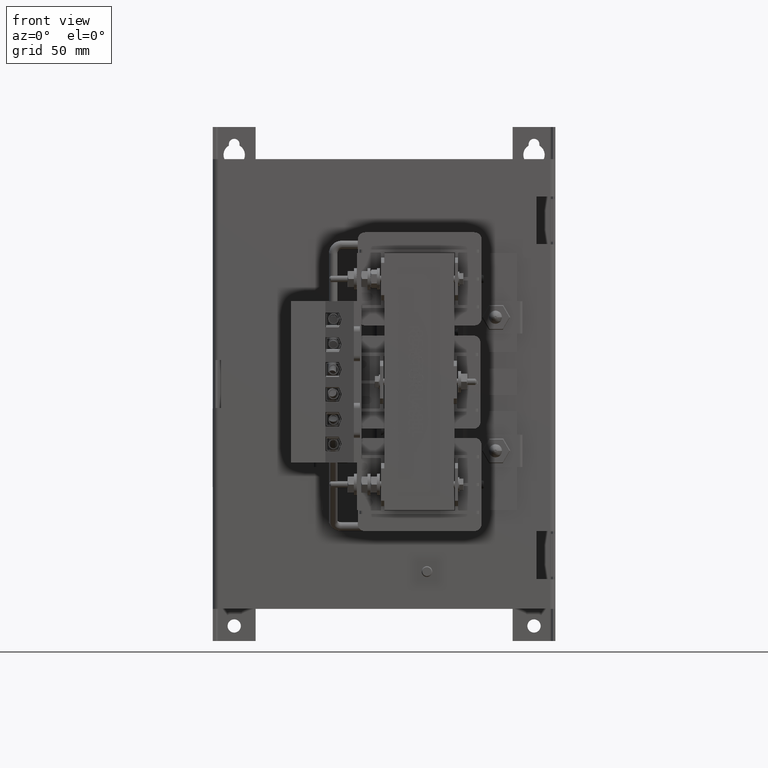
[diagram: clean part render]
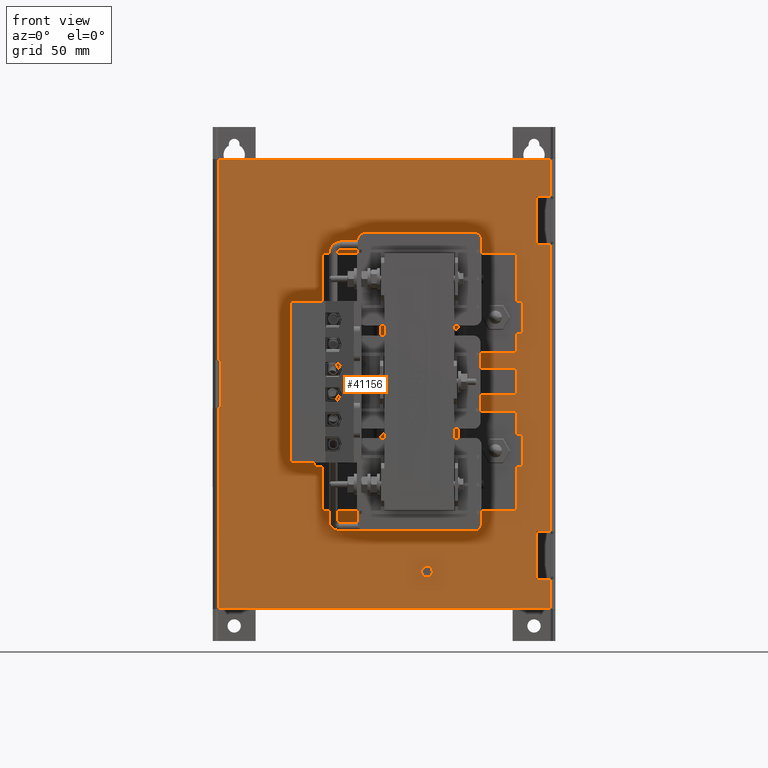
[diagram: same view with one face highlighted and labeled with its STEP entity id]
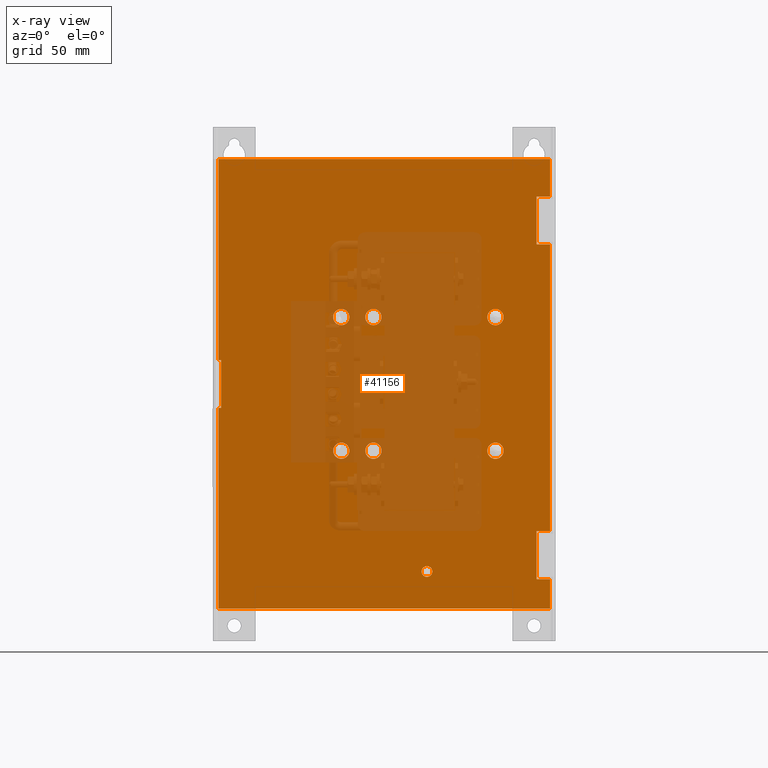
[diagram: x-ray of the same camera — body ghosted, the highlighted face saturated]
A machine part, front view. The second image highlights one B-rep face of the part: STEP entity #41156.
The next image is the same camera in x-ray: the body ghosted, the highlighted face saturated — about 32% of this face is hidden behind the body in this view.
In plain terms, the highlighted planar face has unit normal (-0, 1, 0).
Its self-contained STEP definition (entity closure, byte-faithful):
#1494=FACE_BOUND('',#6390,.T.);
#1495=FACE_BOUND('',#6391,.T.);
#1496=FACE_BOUND('',#6392,.T.);
#1497=FACE_BOUND('',#6393,.T.);
#1498=FACE_BOUND('',#6394,.T.);
#1499=FACE_BOUND('',#6395,.T.);
#1500=FACE_BOUND('',#6396,.T.);
#1930=PLANE('',#44309);
#4074=FACE_OUTER_BOUND('',#6389,.T.);
#6389=EDGE_LOOP('',(#28836,#28837,#28838,#28839,#28840,#28841,#28842,#28843,
#28844,#28845,#28846,#28847,#28848,#28849,#28850,#28851));
#6390=EDGE_LOOP('',(#28852));
#6391=EDGE_LOOP('',(#28853));
#6392=EDGE_LOOP('',(#28854));
#6393=EDGE_LOOP('',(#28855));
#6394=EDGE_LOOP('',(#28856));
#6395=EDGE_LOOP('',(#28857));
#6396=EDGE_LOOP('',(#28858));
#9147=LINE('',#59542,#13192);
#9151=LINE('',#59550,#13196);
#9154=LINE('',#59558,#13199);
#9172=LINE('',#59599,#13217);
#9173=LINE('',#59601,#13218);
#9174=LINE('',#59603,#13219);
#9175=LINE('',#59605,#13220);
#9176=LINE('',#59607,#13221);
#9177=LINE('',#59609,#13222);
#9178=LINE('',#59611,#13223);
#9179=LINE('',#59613,#13224);
#9180=LINE('',#59615,#13225);
#9181=LINE('',#59617,#13226);
#9182=LINE('',#59619,#13227);
#9183=LINE('',#59621,#13228);
#9184=LINE('',#59622,#13229);
#13192=VECTOR('',#48281,0.393700787401575);
#13196=VECTOR('',#48287,0.393700787401575);
#13199=VECTOR('',#48294,0.393700787401575);
#13217=VECTOR('',#48326,0.393700787401575);
#13218=VECTOR('',#48327,0.0914400000000001);
#13219=VECTOR('',#48328,0.393700787401575);
#13220=VECTOR('',#48329,0.393700787401575);
#13221=VECTOR('',#48330,0.393700787401575);
#13222=VECTOR('',#48331,0.393700787401575);
#13223=VECTOR('',#48332,0.393700787401575);
#13224=VECTOR('',#48333,0.393700787401575);
#13225=VECTOR('',#48334,0.393700787401575);
#13226=VECTOR('',#48335,0.393700787401575);
#13227=VECTOR('',#48336,0.393700787401575);
#13228=VECTOR('',#48337,0.0914400000000001);
#13229=VECTOR('',#48338,0.393700787401575);
#17077=CIRCLE('',#44106,0.125);
#17090=CIRCLE('',#44133,0.19);
#17092=CIRCLE('',#44136,0.19);
#17094=CIRCLE('',#44139,0.19);
#17096=CIRCLE('',#44142,0.19);
#17098=CIRCLE('',#44145,0.19);
#17100=CIRCLE('',#44148,0.19);
#18360=VERTEX_POINT('',#59011);
#18373=VERTEX_POINT('',#59060);
#18375=VERTEX_POINT('',#59066);
#18377=VERTEX_POINT('',#59072);
#18379=VERTEX_POINT('',#59078);
#18381=VERTEX_POINT('',#59084);
#18383=VERTEX_POINT('',#59090);
#18534=VERTEX_POINT('',#59539);
#18535=VERTEX_POINT('',#59541);
#18538=VERTEX_POINT('',#59549);
#18541=VERTEX_POINT('',#59557);
#18557=VERTEX_POINT('',#59598);
#18558=VERTEX_POINT('',#59600);
#18559=VERTEX_POINT('',#59602);
#18560=VERTEX_POINT('',#59604);
#18561=VERTEX_POINT('',#59606);
#18562=VERTEX_POINT('',#59608);
#18563=VERTEX_POINT('',#59610);
#18564=VERTEX_POINT('',#59612);
#18565=VERTEX_POINT('',#59614);
#18566=VERTEX_POINT('',#59616);
#18567=VERTEX_POINT('',#59618);
#18568=VERTEX_POINT('',#59620);
#22336=EDGE_CURVE('',#18360,#18360,#17077,.T.);
#22357=EDGE_CURVE('',#18373,#18373,#17090,.T.);
#22360=EDGE_CURVE('',#18375,#18375,#17092,.T.);
#22363=EDGE_CURVE('',#18377,#18377,#17094,.T.);
#22366=EDGE_CURVE('',#18379,#18379,#17096,.T.);
#22369=EDGE_CURVE('',#18381,#18381,#17098,.T.);
#22372=EDGE_CURVE('',#18383,#18383,#17100,.T.);
#22597=EDGE_CURVE('',#18535,#18534,#9147,.T.);
#22601=EDGE_CURVE('',#18538,#18535,#9151,.T.);
#22605=EDGE_CURVE('',#18541,#18538,#9154,.T.);
#22626=EDGE_CURVE('',#18534,#18557,#9172,.T.);
#22627=EDGE_CURVE('',#18557,#18558,#9173,.T.);
#22628=EDGE_CURVE('',#18558,#18559,#9174,.T.);
#22629=EDGE_CURVE('',#18559,#18560,#9175,.T.);
#22630=EDGE_CURVE('',#18560,#18561,#9176,.T.);
#22631=EDGE_CURVE('',#18561,#18562,#9177,.T.);
#22632=EDGE_CURVE('',#18562,#18563,#9178,.T.);
#22633=EDGE_CURVE('',#18563,#18564,#9179,.T.);
#22634=EDGE_CURVE('',#18564,#18565,#9180,.T.);
#22635=EDGE_CURVE('',#18565,#18566,#9181,.T.);
#22636=EDGE_CURVE('',#18566,#18567,#9182,.T.);
#22637=EDGE_CURVE('',#18568,#18567,#9183,.T.);
#22638=EDGE_CURVE('',#18568,#18541,#9184,.T.);
#28836=ORIENTED_EDGE('',*,*,#22605,.T.);
#28837=ORIENTED_EDGE('',*,*,#22601,.T.);
#28838=ORIENTED_EDGE('',*,*,#22597,.T.);
#28839=ORIENTED_EDGE('',*,*,#22626,.T.);
#28840=ORIENTED_EDGE('',*,*,#22627,.T.);
#28841=ORIENTED_EDGE('',*,*,#22628,.T.);
#28842=ORIENTED_EDGE('',*,*,#22629,.T.);
#28843=ORIENTED_EDGE('',*,*,#22630,.T.);
#28844=ORIENTED_EDGE('',*,*,#22631,.T.);
#28845=ORIENTED_EDGE('',*,*,#22632,.T.);
#28846=ORIENTED_EDGE('',*,*,#22633,.T.);
#28847=ORIENTED_EDGE('',*,*,#22634,.T.);
#28848=ORIENTED_EDGE('',*,*,#22635,.T.);
#28849=ORIENTED_EDGE('',*,*,#22636,.T.);
#28850=ORIENTED_EDGE('',*,*,#22637,.F.);
#28851=ORIENTED_EDGE('',*,*,#22638,.T.);
#28852=ORIENTED_EDGE('',*,*,#22336,.T.);
#28853=ORIENTED_EDGE('',*,*,#22357,.T.);
#28854=ORIENTED_EDGE('',*,*,#22360,.T.);
#28855=ORIENTED_EDGE('',*,*,#22363,.T.);
#28856=ORIENTED_EDGE('',*,*,#22366,.T.);
#28857=ORIENTED_EDGE('',*,*,#22369,.T.);
#28858=ORIENTED_EDGE('',*,*,#22372,.T.);
#41156=ADVANCED_FACE('',(#4074,#1494,#1495,#1496,#1497,#1498,#1499,#1500),
#1930,.F.);
#44106=AXIS2_PLACEMENT_3D('',#59013,#47733,#47734);
#44133=AXIS2_PLACEMENT_3D('',#59061,#47795,#47796);
#44136=AXIS2_PLACEMENT_3D('',#59067,#47802,#47803);
#44139=AXIS2_PLACEMENT_3D('',#59073,#47809,#47810);
#44142=AXIS2_PLACEMENT_3D('',#59079,#47816,#47817);
#44145=AXIS2_PLACEMENT_3D('',#59085,#47823,#47824);
#44148=AXIS2_PLACEMENT_3D('',#59091,#47830,#47831);
#44309=AXIS2_PLACEMENT_3D('',#59597,#48324,#48325);
#47733=DIRECTION('center_axis',(-1.,5.22156545352832E-15,-1.25776999125158E-18));
#47734=DIRECTION('ref_axis',(-9.47193577373439E-31,-1.69285700614362E-16,
1.));
#47795=DIRECTION('center_axis',(-1.,5.22156545352832E-15,-1.25776999125158E-18));
#47796=DIRECTION('ref_axis',(0.,-1.69285700614362E-16,1.));
#47802=DIRECTION('center_axis',(-1.,5.22156545352832E-15,-1.25776999125158E-18));
#47803=DIRECTION('ref_axis',(-9.32236293014625E-31,-1.69285700614362E-16,
1.));
#47809=DIRECTION('center_axis',(-1.,5.22156545352832E-15,-1.25776999125158E-18));
#47810=DIRECTION('ref_axis',(0.,-1.69285700614362E-16,1.));
#47816=DIRECTION('center_axis',(-1.,5.22156545352832E-15,-1.25776999125158E-18));
#47817=DIRECTION('ref_axis',(0.,-1.69285700614362E-16,1.));
#47823=DIRECTION('center_axis',(-1.,5.22156545352832E-15,-1.25776999125158E-18));
#47824=DIRECTION('ref_axis',(0.,-1.69285700614362E-16,1.));
#47830=DIRECTION('center_axis',(-1.,5.22156545352832E-15,-1.25776999125158E-18));
#47831=DIRECTION('ref_axis',(-9.32236293014626E-31,-1.69285700614362E-16,
1.));
#48281=DIRECTION('',(-5.22156545352832E-15,-1.,-3.33025279227644E-16));
#48287=DIRECTION('',(1.25776999125332E-18,3.33025279227644E-16,-1.));
#48294=DIRECTION('',(5.22156545352832E-15,1.,3.33025279227644E-16));
#48324=DIRECTION('center_axis',(-1.,5.22156545352832E-15,-1.25776999125158E-18));
#48325=DIRECTION('ref_axis',(-1.25776999125311E-18,-2.91391609215832E-16,
1.));
#48326=DIRECTION('',(1.25776999125306E-18,2.84106681232727E-16,-1.));
#48327=DIRECTION('',(5.34500394438953E-15,1.,2.76821753249622E-16));
#48328=DIRECTION('',(-1.25776999125297E-18,-2.66420223382115E-16,1.));
#48329=DIRECTION('',(-5.22156545352832E-15,-1.,-3.33025279227644E-16));
#48330=DIRECTION('',(-1.25776999125332E-18,-3.33025279227644E-16,1.));
#48331=DIRECTION('',(5.22156545352832E-15,1.,3.33025279227644E-16));
#48332=DIRECTION('',(-1.25776999125297E-18,-2.66420223382115E-16,1.));
#48333=DIRECTION('',(-5.22156545352833E-15,-1.,-3.33025279227644E-16));
#48334=DIRECTION('',(-1.25776999125332E-18,-3.33025279227644E-16,1.));
#48335=DIRECTION('',(5.22156545352833E-15,1.,3.33025279227644E-16));
#48336=DIRECTION('',(-1.25776999125297E-18,-2.66420223382115E-16,1.));
#48337=DIRECTION('',(5.34500394438953E-15,1.,2.76821753249622E-16));
#48338=DIRECTION('',(1.25776999125306E-18,2.84106681232727E-16,-1.));
#59011=CARTESIAN_POINT('',(3.25000000000003,5.,1.495));
#59013=CARTESIAN_POINT('Origin',(3.25000000000003,5.,1.62));
#59060=CARTESIAN_POINT('',(3.25000000000002,3.75,4.25));
#59061=CARTESIAN_POINT('Origin',(3.25000000000002,3.75,4.44));
#59066=CARTESIAN_POINT('',(3.25000000000001,3.,7.37));
#59067=CARTESIAN_POINT('Origin',(3.25000000000001,3.,7.56));
#59072=CARTESIAN_POINT('',(3.25000000000003,6.6,7.37));
#59073=CARTESIAN_POINT('Origin',(3.25000000000002,6.6,7.56));
#59078=CARTESIAN_POINT('',(3.25000000000002,3.75,7.37));
#59079=CARTESIAN_POINT('Origin',(3.25000000000002,3.75,7.56));
#59084=CARTESIAN_POINT('',(3.25000000000003,6.6,4.25));
#59085=CARTESIAN_POINT('Origin',(3.25000000000002,6.6,4.44));
#59090=CARTESIAN_POINT('',(3.25000000000001,3.,4.25));
#59091=CARTESIAN_POINT('Origin',(3.25000000000001,3.,4.44));
#59539=CARTESIAN_POINT('',(3.25,0.127,5.44));
#59541=CARTESIAN_POINT('',(3.25,0.193499999999998,5.44));
#59542=CARTESIAN_POINT('',(3.25000000000001,2.09259159596947,5.44));
#59549=CARTESIAN_POINT('',(3.25,0.193499999999998,6.56));
#59550=CARTESIAN_POINT('',(3.25,0.193499999999998,6.28));
#59557=CARTESIAN_POINT('',(3.25,0.127,6.56));
#59558=CARTESIAN_POINT('',(3.25000000000001,2.02759159596947,6.56));
#59597=CARTESIAN_POINT('Origin',(3.25000000000002,3.99168319193894,6.));
#59598=CARTESIAN_POINT('',(3.25,0.127000000000001,0.75));
#59599=CARTESIAN_POINT('',(3.25,0.127,6.));
#59600=CARTESIAN_POINT('',(3.25000000000004,7.873,0.750000000000001));
#59601=CARTESIAN_POINT('',(3.25,-0.16026723224425,0.75));
#59602=CARTESIAN_POINT('',(3.25000000000004,7.873,1.441));
#59603=CARTESIAN_POINT('',(3.25000000000004,7.873,8.625));
#59604=CARTESIAN_POINT('',(3.25000000000004,7.56,1.441));
#59605=CARTESIAN_POINT('',(3.25000000000003,5.99584159596947,1.441));
#59606=CARTESIAN_POINT('',(3.25000000000004,7.56,2.559));
#59607=CARTESIAN_POINT('',(3.25000000000004,7.56,3.7205));
#59608=CARTESIAN_POINT('',(3.25000000000004,7.873,2.559));
#59609=CARTESIAN_POINT('',(3.25000000000003,5.77584159596947,2.559));
#59610=CARTESIAN_POINT('',(3.25000000000004,7.873,9.261));
#59611=CARTESIAN_POINT('',(3.25000000000004,7.873,8.625));
#59612=CARTESIAN_POINT('',(3.25000000000004,7.56,9.261));
#59613=CARTESIAN_POINT('',(3.25000000000003,5.99584159596947,9.261));
#59614=CARTESIAN_POINT('',(3.25000000000004,7.56,10.379));
#59615=CARTESIAN_POINT('',(3.25000000000004,7.56,7.6305));
#59616=CARTESIAN_POINT('',(3.25000000000004,7.873,10.379));
#59617=CARTESIAN_POINT('',(3.25000000000003,5.77584159596947,10.379));
#59618=CARTESIAN_POINT('',(3.25000000000004,7.873,11.25));
#59619=CARTESIAN_POINT('',(3.25000000000004,7.873,8.625));
#59620=CARTESIAN_POINT('',(3.25,0.126999999999998,11.25));
#59621=CARTESIAN_POINT('',(3.25,-0.160267232244253,11.25));
#59622=CARTESIAN_POINT('',(3.25,0.127,6.));